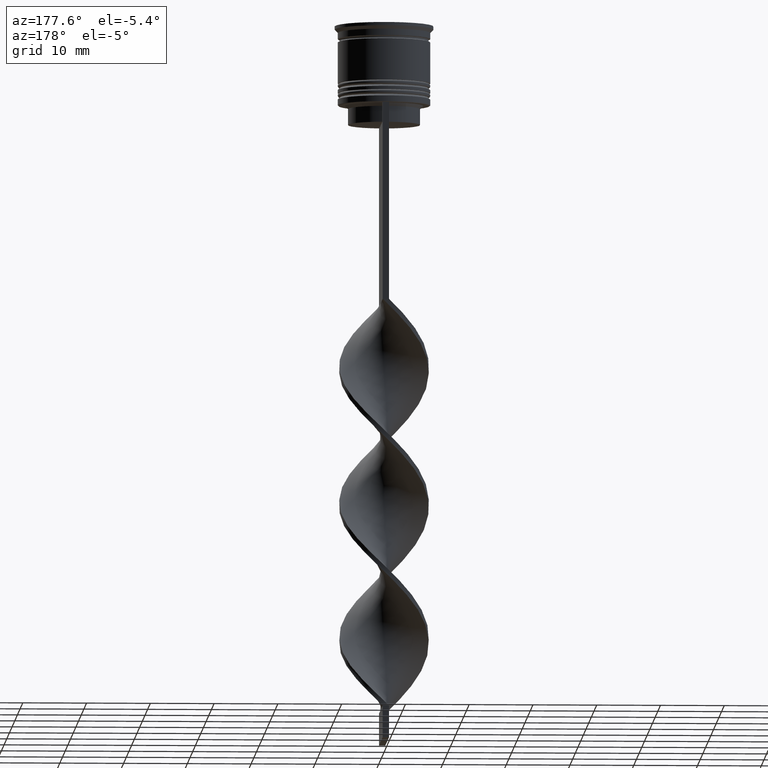
[diagram: clean part render]
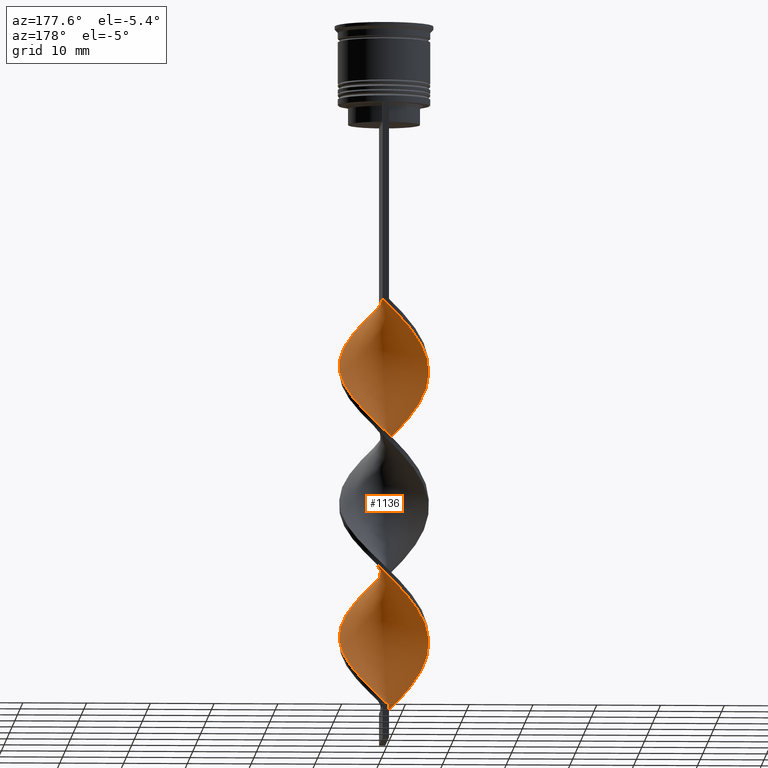
[diagram: same view with one face highlighted and labeled with its STEP entity id]
A machine part, auxiliary view. The second image highlights one B-rep face of the part: STEP entity #1136.
In plain terms, the highlighted face is a freeform B-spline surface patch.
Its self-contained STEP definition (entity closure, byte-faithful):
#39 = B_SPLINE_CURVE_WITH_KNOTS ( 'NONE', 3,
 ( #654, #2199, #832, #1928 ),
 .UNSPECIFIED., .F., .F.,
 ( 4, 4 ),
 ( 0.000000000000000000, 1.000000000000000000 ),
 .UNSPECIFIED. ) ;
#61 = VERTEX_POINT ( 'NONE', #193 ) ;
#62 = CARTESIAN_POINT ( 'NONE',  ( -6.722416142319174170, -2.014726087955041933, -99.29487179487178139 ) ) ;
#66 = CARTESIAN_POINT ( 'NONE',  ( -4.267603233600016921, 5.571136566318108052, -48.42307692307691269 ) ) ;
#69 = CARTESIAN_POINT ( 'NONE',  ( 6.888693778558713454, 1.340111198836287043, -97.65384615384614619 ) ) ;
#86 = CARTESIAN_POINT ( 'NONE',  ( 0.3499538825558265454, 7.060710991611127696, -106.6794871794871682 ) ) ;
#96 = CARTESIAN_POINT ( 'NONE',  ( -6.009647691495620947, 3.722934602041179986, -93.55128205128204399 ) ) ;
#98 = CARTESIAN_POINT ( 'NONE',  ( -6.044919434621174759, -3.564961294171263173, -58.26923076923076650 ) ) ;
#100 = CARTESIAN_POINT ( 'NONE',  ( 5.612054764172300203, -4.298947400341750047, -91.91025641025643722 ) ) ;
#102 =( BOUNDED_SURFACE ( )  B_SPLINE_SURFACE ( 1, 2, ( 
 ( #596, #649, #2778, #325, #116, #1412, #66, #3352, #911, #2243, #3316, #1967, #1739, #3058, #612, #2831, #2544, #377, #98, #1256, #1311, #2900, #1563, #736, #432, #1278, #2110, #1001, #190, #1525, #1579, #2615, #3154, #2935, #680, #2076, #152, #2656, #3169, #1795, #1295, #1834, #2349, #2675, #3203, #2886, #719, #1811, #1778, #2367, #454, #205, #169, #2381, #3446, #757, #491, #3427, #1851, #3462, #2596, #222, #1543, #415, #1021, #3183, #2093, #2400, #3484, #2921, #2639, #985, #473, #2038, #3132, #2870, #1508, #1236, #2325 ),
 ( #3404, #963, #2058, #704, #245, #1328, #2420, #2695, #1867, #2950, #509, #1599, #1042, #2131, #3218, #773, #1742, #2833, #379, #3099, #1494, #914, #2297, #651, #3356, #1468, #1724, #2546, #2276, #2008, #2817, #2584, #1987, #665, #141, #3373, #888, #2562, #365, #1222, #3080, #1759, #2314, #930, #636, #2781, #1148, #2026, #614, #1181, #858, #121, #1453, #1202, #3332, #3116, #2850, #1954, #400, #100, #3047, #598, #1685, #327, #1415, #2513, #69, #2244, #3318, #871, #351, #1969, #3061, #1701, #2799, #1435, #2529, #86, #1163 ) ),
 .UNSPECIFIED., .F., .F., .F. ) 
 B_SPLINE_SURFACE_WITH_KNOTS ( ( 2, 2 ),
 ( 3, 2, 2, 2, 2, 2, 2, 2, 2, 2, 2, 2, 2, 2, 2, 2, 2, 2, 2, 2, 2, 2, 2, 2, 2, 2, 2, 2, 2, 2, 2, 2, 2, 2, 2, 2, 2, 2, 2, 3 ),
 ( 0.000000000000000000, 1.000000000000000000 ),
 ( 0.000000000000000000, 0.01923076923076923184, 0.03846153846153846367, 0.05769230769230769551, 0.07692307692307692735, 0.09615384615384615918, 0.1153846153846153910, 0.1346153846153846090, 0.1538461538461538547, 0.1730769230769230727, 0.1923076923076923184, 0.2115384615384615363, 0.2307692307692307820, 0.2500000000000000000, 0.2692307692307692180, 0.2884615384615384359, 0.3076923076923077094, 0.3269230769230769273, 0.3461538461538461453, 0.3653846153846153633, 0.3846153846153846367, 0.4038461538461538547, 0.4230769230769230727, 0.4423076923076922906, 0.4615384615384615641, 0.4807692307692307820, 0.5000000000000000000, 0.5192307692307692735, 0.5384615384615384359, 0.5576923076923077094, 0.5769230769230768718, 0.5961538461538461453, 0.6153846153846154188, 0.6346153846153845812, 0.6538461538461538547, 0.6730769230769231282, 0.6923076923076922906, 0.7115384615384615641, 0.7307692307692307265, 0.7500000000000000000 ),
 .UNSPECIFIED. ) 
 GEOMETRIC_REPRESENTATION_ITEM ( )  RATIONAL_B_SPLINE_SURFACE ( (
 ( 1.000000000000000000, 0.9927088740980539727, 1.000000000000000000, 0.9927088740980539727, 1.000000000000000000, 0.9927088740980539727, 1.000000000000000000, 0.9927088740980539727, 1.000000000000000000, 0.9927088740980539727, 1.000000000000000000, 0.9927088740980539727, 1.000000000000000000, 0.9927088740980539727, 1.000000000000000000, 0.9927088740980539727, 1.000000000000000000, 0.9927088740980539727, 1.000000000000000000, 0.9927088740980539727, 1.000000000000000000, 0.9927088740980539727, 1.000000000000000000, 0.9927088740980539727, 1.000000000000000000, 0.9927088740980539727, 1.000000000000000000, 0.9927088740980539727, 1.000000000000000000, 0.9927088740980539727, 1.000000000000000000, 0.9927088740980539727, 1.000000000000000000, 0.9927088740980539727, 1.000000000000000000, 0.9927088740980539727, 1.000000000000000000, 0.9927088740980539727, 1.000000000000000000, 0.9927088740980539727, 1.000000000000000000, 0.9927088740980539727, 1.000000000000000000, 0.9927088740980539727, 1.000000000000000000, 0.9927088740980539727, 1.000000000000000000, 0.9927088740980539727, 1.000000000000000000, 0.9927088740980539727, 1.000000000000000000, 0.9927088740980539727, 1.000000000000000000, 0.9927088740980539727, 1.000000000000000000, 0.9927088740980539727, 1.000000000000000000, 0.9927088740980539727, 1.000000000000000000, 0.9927088740980539727, 1.000000000000000000, 0.9927088740980539727, 1.000000000000000000, 0.9927088740980539727, 1.000000000000000000, 0.9927088740980539727, 1.000000000000000000, 0.9927088740980539727, 1.000000000000000000, 0.9927088740980539727, 1.000000000000000000, 0.9927088740980539727, 1.000000000000000000, 0.9927088740980539727, 1.000000000000000000, 0.9927088740980539727, 1.000000000000000000, 0.9927088740980539727, 1.000000000000000000),
 ( 1.000000000000000000, 0.9927088740980539727, 1.000000000000000000, 0.9927088740980539727, 1.000000000000000000, 0.9927088740980539727, 1.000000000000000000, 0.9927088740980539727, 1.000000000000000000, 0.9927088740980539727, 1.000000000000000000, 0.9927088740980539727, 1.000000000000000000, 0.9927088740980539727, 1.000000000000000000, 0.9927088740980539727, 1.000000000000000000, 0.9927088740980539727, 1.000000000000000000, 0.9927088740980539727, 1.000000000000000000, 0.9927088740980539727, 1.000000000000000000, 0.9927088740980539727, 1.000000000000000000, 0.9927088740980539727, 1.000000000000000000, 0.9927088740980539727, 1.000000000000000000, 0.9927088740980539727, 1.000000000000000000, 0.9927088740980539727, 1.000000000000000000, 0.9927088740980539727, 1.000000000000000000, 0.9927088740980539727, 1.000000000000000000, 0.9927088740980539727, 1.000000000000000000, 0.9927088740980539727, 1.000000000000000000, 0.9927088740980539727, 1.000000000000000000, 0.9927088740980539727, 1.000000000000000000, 0.9927088740980539727, 1.000000000000000000, 0.9927088740980539727, 1.000000000000000000, 0.9927088740980539727, 1.000000000000000000, 0.9927088740980539727, 1.000000000000000000, 0.9927088740980539727, 1.000000000000000000, 0.9927088740980539727, 1.000000000000000000, 0.9927088740980539727, 1.000000000000000000, 0.9927088740980539727, 1.000000000000000000, 0.9927088740980539727, 1.000000000000000000, 0.9927088740980539727, 1.000000000000000000, 0.9927088740980539727, 1.000000000000000000, 0.9927088740980539727, 1.000000000000000000, 0.9927088740980539727, 1.000000000000000000, 0.9927088740980539727, 1.000000000000000000, 0.9927088740980539727, 1.000000000000000000, 0.9927088740980539727, 1.000000000000000000, 0.9927088740980539727, 1.000000000000000000) ) ) 
 REPRESENTATION_ITEM ( '' )  SURFACE ( )  );
#116 = CARTESIAN_POINT ( 'NONE',  ( -2.810334191479775701, 6.430553765594355653, -46.78205128205127750 ) ) ;
#121 = CARTESIAN_POINT ( 'NONE',  ( -0.3499538825558274335, -7.060710991611127696, -85.34615384615383959 ) ) ;
#127 =( BOUNDED_CURVE ( )  B_SPLINE_CURVE ( 2, ( #1486, #2106, #2324, #452, #984, #1254, #961, #391, #203, #3153, #189, #3182, #3402, #1794, #3201, #1293, #1507, #2843, #2057, #2579, #1524, #3425, #137, #2899, #431, #1775, #2595, #703, #3444, #2885, #2637, #2308, #2614, #3168, #2075, #151, #3461, #1000, #167, #1562, #1275, #2091, #1755, #1235, #2920, #1019, #718, #734, #1216, #2655, #1832, #1809, #1541, #472, #3385, #940, #3130, #678, #2869, #1346, #2934, #2674, #1041, #3266, #506, #1070, #2200, #2988, #2436, #542, #3231, #1916, #1578, #3499, #2712, #3516, #1383, #3002, #756 ),
 .UNSPECIFIED., .F., .T. ) 
 B_SPLINE_CURVE_WITH_KNOTS ( ( 3, 2, 2, 2, 2, 2, 2, 2, 2, 2, 2, 2, 2, 2, 2, 2, 2, 2, 2, 2, 2, 2, 2, 2, 2, 2, 2, 2, 2, 2, 2, 2, 2, 2, 2, 2, 2, 2, 2, 3 ),
 ( 0.000000000000000000, 0.01923076923076923184, 0.03846153846153846367, 0.05769230769230768857, 0.07692307692307692735, 0.09615384615384615918, 0.1153846153846153771, 0.1346153846153846090, 0.1538461538461538547, 0.1730769230769230449, 0.1923076923076923184, 0.2115384615384615363, 0.2307692307692307543, 0.2500000000000000000, 0.2692307692307692180, 0.2884615384615384359, 0.3076923076923077094, 0.3269230769230769273, 0.3461538461538460898, 0.3653846153846153633, 0.3846153846153846367, 0.4038461538461539102, 0.4230769230769230727, 0.4423076923076922906, 0.4615384615384615086, 0.4807692307692307820, 0.5000000000000000000, 0.5192307692307692735, 0.5384615384615384359, 0.5576923076923077094, 0.5769230769230768718, 0.5961538461538461453, 0.6153846153846154188, 0.6346153846153845812, 0.6538461538461538547, 0.6730769230769230171, 0.6923076923076921796, 0.7115384615384615641, 0.7307692307692307265, 0.7500000000000000000 ),
 .UNSPECIFIED. ) 
 CURVE ( )  GEOMETRIC_REPRESENTATION_ITEM ( )  RATIONAL_B_SPLINE_CURVE ( ( 1.000000000000000000, 0.9927088740980539727, 1.000000000000000000, 0.9927088740980539727, 1.000000000000000000, 0.9927088740980539727, 1.000000000000000000, 0.9927088740980539727, 1.000000000000000000, 0.9927088740980539727, 1.000000000000000000, 0.9927088740980539727, 1.000000000000000000, 0.9927088740980539727, 1.000000000000000000, 0.9927088740980539727, 1.000000000000000000, 0.9927088740980539727, 1.000000000000000000, 0.9927088740980539727, 1.000000000000000000, 0.9927088740980539727, 1.000000000000000000, 0.9927088740980539727, 1.000000000000000000, 0.9927088740980539727, 1.000000000000000000, 0.9927088740980539727, 1.000000000000000000, 0.9927088740980539727, 1.000000000000000000, 0.9927088740980539727, 1.000000000000000000, 0.9927088740980539727, 1.000000000000000000, 0.9927088740980539727, 1.000000000000000000, 0.9927088740980539727, 1.000000000000000000, 0.9927088740980539727, 1.000000000000000000, 0.9927088740980539727, 1.000000000000000000, 0.9927088740980539727, 1.000000000000000000, 0.9927088740980539727, 1.000000000000000000, 0.9927088740980539727, 1.000000000000000000, 0.9927088740980539727, 1.000000000000000000, 0.9927088740980539727, 1.000000000000000000, 0.9927088740980539727, 1.000000000000000000, 0.9927088740980539727, 1.000000000000000000, 0.9927088740980539727, 1.000000000000000000, 0.9927088740980539727, 1.000000000000000000, 0.9927088740980539727, 1.000000000000000000, 0.9927088740980539727, 1.000000000000000000, 0.9927088740980539727, 1.000000000000000000, 0.9927088740980539727, 1.000000000000000000, 0.9927088740980539727, 1.000000000000000000, 0.9927088740980539727, 1.000000000000000000, 0.9927088740980539727, 1.000000000000000000, 0.9927088740980539727, 1.000000000000000000, 0.9927088740980539727, 1.000000000000000000 ) ) 
 REPRESENTATION_ITEM ( '' )  );
#137 = CARTESIAN_POINT ( 'NONE',  ( 2.810334191479774812, 6.430553765594350324, -61.55128205128204399 ) ) ;
#141 = CARTESIAN_POINT ( 'NONE',  ( -6.044919434621171206, 3.564961294171262285, -71.39743589743588359 ) ) ;
#147 = CARTESIAN_POINT ( 'NONE',  ( -4.267603233600016921, 5.571136566318108052, -48.42307692307691269 ) ) ;
#151 = CARTESIAN_POINT ( 'NONE',  ( -6.477784105070039544, 2.830975188000776743, -72.21794871794871540 ) ) ;
#152 = CARTESIAN_POINT ( 'NONE',  ( 6.367811255276637716, -2.949742330640459542, -73.03846153846153300 ) ) ;
#163 = CARTESIAN_POINT ( 'NONE',  ( -0.3499538825558239363, 7.060710991611133025, -44.32051282051282470 ) ) ;
#167 = CARTESIAN_POINT ( 'NONE',  ( -7.009230458814037057, 0.3474023247382377333, -74.67948717948718240 ) ) ;
#169 = CARTESIAN_POINT ( 'NONE',  ( 0.5000000000000000000, 7.000000000000002665, -86.16666666666667140 ) ) ;
#183 = CARTESIAN_POINT ( 'NONE',  ( -6.477784105070046650, -2.830975188000774523, -57.44871794871794890 ) ) ;
#189 = CARTESIAN_POINT ( 'NONE',  ( 6.722416142319168841, -2.014726087955042377, -51.70512820512820440 ) ) ;
#190 = CARTESIAN_POINT ( 'NONE',  ( 1.189738741299876557, -6.916250554126146532, -66.47435897435896379 ) ) ;
#193 = CARTESIAN_POINT ( 'NONE',  ( -0.4999999999999991673, 6.999999999999997335, -107.5000000000000000 ) ) ;
#203 = CARTESIAN_POINT ( 'NONE',  ( 6.044919434621171206, -3.564961294171262285, -50.06410256410256210 ) ) ;
#205 = CARTESIAN_POINT ( 'NONE',  ( 1.349953882555827933, 6.939289008388872304, -85.34615384615383959 ) ) ;
#215 = ORIENTED_EDGE ( 'NONE', *, *, #2540, .T. ) ;
#222 = CARTESIAN_POINT ( 'NONE',  ( -6.009647691495620947, 3.722934602041179986, -93.55128205128204399 ) ) ;
#245 = CARTESIAN_POINT ( 'NONE',  ( 3.695790217132983280, -5.965830593550583316, -46.78205128205127750 ) ) ;
#322 = CARTESIAN_POINT ( 'NONE',  ( -5.612054764172305532, -4.298947400341750935, -101.7564102564102484 ) ) ;
#325 = CARTESIAN_POINT ( 'NONE',  ( -2.029523600043933396, 6.771790116641159152, -45.96153846153845279 ) ) ;
#327 = CARTESIAN_POINT ( 'NONE',  ( 6.967048179568297250, -1.198476987909310010, -95.19230769230769340 ) ) ;
#344 = CARTESIAN_POINT ( 'NONE',  ( -4.420173199369934913, -5.517080415812871230, -103.3974358974358836 ) ) ;
#351 = CARTESIAN_POINT ( 'NONE',  ( 5.476854687890015505, 4.387945160064917083, -100.9358974358974308 ) ) ;
#365 = CARTESIAN_POINT ( 'NONE',  ( -7.009230458814037057, 0.3474023247382377333, -74.67948717948718240 ) ) ;
#377 = CARTESIAN_POINT ( 'NONE',  ( -6.477784105070046650, -2.830975188000774079, -57.44871794871794890 ) ) ;
#379 = CARTESIAN_POINT ( 'NONE',  ( 5.476854687890015505, 4.387945160064917083, -58.26923076923076650 ) ) ;
#385 = CARTESIAN_POINT ( 'NONE',  ( 1.189738741299876557, -6.916250554126146532, -66.47435897435896379 ) ) ;
#391 = CARTESIAN_POINT ( 'NONE',  ( 5.612054764172300203, -4.298947400341750047, -49.24358974358974450 ) ) ;
#400 = CARTESIAN_POINT ( 'NONE',  ( 5.016113981771114005, -4.908013908077308862, -91.08974358974359120 ) ) ;
#415 = CARTESIAN_POINT ( 'NONE',  ( -6.725974819057656262, 2.176550059239737323, -95.19230769230769340 ) ) ;
#431 = CARTESIAN_POINT ( 'NONE',  ( 1.189738741299880109, 6.916250554126139427, -63.19230769230768630 ) ) ;
#432 = CARTESIAN_POINT ( 'NONE',  ( -2.160680558725933675, -6.676934889838586962, -63.19230769230768630 ) ) ;
#446 = CARTESIAN_POINT ( 'NONE',  ( -7.009230458814042386, -0.3474023247382335144, -54.98717948717948190 ) ) ;
#452 = CARTESIAN_POINT ( 'NONE',  ( 2.971407234896035643, -6.414580771288298955, -45.96153846153845990 ) ) ;
#454 = CARTESIAN_POINT ( 'NONE',  ( 2.160680558725937228, 6.676934889838585185, -84.52564102564103621 ) ) ;
#467 = CARTESIAN_POINT ( 'NONE',  ( -4.420173199369934913, -5.517080415812871230, -60.73076923076922640 ) ) ;
#472 = CARTESIAN_POINT ( 'NONE',  ( 1.349953882555823492, -6.939289008388866975, -86.98717948717948900 ) ) ;
#473 = CARTESIAN_POINT ( 'NONE',  ( -5.016113981771120223, -4.908013908077310639, -102.5769230769230660 ) ) ;
#486 = CARTESIAN_POINT ( 'NONE',  ( 5.612054764172307308, 4.298947400341747382, -80.42307692307691980 ) ) ;
#491 = CARTESIAN_POINT ( 'NONE',  ( -2.810334191479775701, 6.430553765594355653, -89.44871794871794179 ) ) ;
#506 = CARTESIAN_POINT ( 'NONE',  ( 7.009230458814037057, -0.3474023247382352353, -96.01282051282051100 ) ) ;
#509 = CARTESIAN_POINT ( 'NONE',  ( 6.722416142319168841, -2.014726087955042377, -51.70512820512820440 ) ) ;
#542 = CARTESIAN_POINT ( 'NONE',  ( 6.009647691495615618, 3.722934602041176877, -100.1153846153846132 ) ) ;
#593 = CARTESIAN_POINT ( 'NONE',  ( -0.3499538825558239363, 7.060710991611133025, -86.98717948717948900 ) ) ;
#596 = CARTESIAN_POINT ( 'NONE',  ( 0.5000000000000000000, 7.000000000000002665, -43.50000000000000000 ) ) ;
#598 = CARTESIAN_POINT ( 'NONE',  ( 6.477784105070041321, -2.830975188000772746, -93.55128205128204399 ) ) ;
#612 = CARTESIAN_POINT ( 'NONE',  ( -7.009230458814042386, -0.3474023247382335144, -54.98717948717948190 ) ) ;
#614 = CARTESIAN_POINT ( 'NONE',  ( -2.810334191479778365, -6.430553765594348548, -82.88461538461537259 ) ) ;
#636 = CARTESIAN_POINT ( 'NONE',  ( -5.476854687890015505, -4.387945160064916195, -79.60256410256410220 ) ) ;
#647 = CARTESIAN_POINT ( 'NONE',  ( -1.349953882555827045, -6.939289008388872304, -106.6794871794871824 ) ) ;
#649 = CARTESIAN_POINT ( 'NONE',  ( -0.3499538825558239363, 7.060710991611133025, -44.32051282051282470 ) ) ;
#651 = CARTESIAN_POINT ( 'NONE',  ( 2.029523600043933840, 6.771790116641152935, -62.37179487179486870 ) ) ;
#654 = CARTESIAN_POINT ( 'NONE',  ( -0.5000000000000008882, -7.000000000000002665, -107.5000000000000000 ) ) ;
#665 = CARTESIAN_POINT ( 'NONE',  ( -5.612054764172298427, 4.298947400341751823, -70.57692307692306599 ) ) ;
#678 = CARTESIAN_POINT ( 'NONE',  ( 4.420173199369930472, -5.517080415812867678, -90.26923076923077360 ) ) ;
#680 = CARTESIAN_POINT ( 'NONE',  ( 5.476854687890019058, -4.387945160064921524, -71.39743589743588359 ) ) ;
#696 = CARTESIAN_POINT ( 'NONE',  ( -4.944061684284418057, 5.052955718088663062, -49.24358974358974450 ) ) ;
#703 = CARTESIAN_POINT ( 'NONE',  ( -1.349953882555821938, 6.939289008388866975, -65.65384615384614619 ) ) ;
#704 = CARTESIAN_POINT ( 'NONE',  ( 2.971407234896035199, -6.414580771288298955, -45.96153846153845279 ) ) ;
#707 = ORIENTED_EDGE ( 'NONE', *, *, #1647, .F. ) ;
#714 = CARTESIAN_POINT ( 'NONE',  ( 0.5000000000000000000, 7.000000000000002665, -43.50000000000000000 ) ) ;
#718 = CARTESIAN_POINT ( 'NONE',  ( -4.267603233600016921, -5.571136566318100947, -81.24358974358973740 ) ) ;
#719 = CARTESIAN_POINT ( 'NONE',  ( 5.016113981771121111, 4.908013908077309750, -81.24358974358973740 ) ) ;
#729 = CARTESIAN_POINT ( 'NONE',  ( -5.612054764172305532, -4.298947400341750935, -59.08974358974358410 ) ) ;
#734 = CARTESIAN_POINT ( 'NONE',  ( -3.591144782915616673, -6.089317414547548601, -82.06410256410255499 ) ) ;
#736 = CARTESIAN_POINT ( 'NONE',  ( -2.971407234896040084, -6.414580771288303396, -62.37179487179486870 ) ) ;
#749 = CARTESIAN_POINT ( 'NONE',  ( 6.967048179568302579, 1.198476987909308011, -77.14102564102563520 ) ) ;
#756 = CARTESIAN_POINT ( 'NONE',  ( -0.4999999999999991673, 6.999999999999997335, -107.5000000000000000 ) ) ;
#757 = CARTESIAN_POINT ( 'NONE',  ( -2.029523600043933396, 6.771790116641159152, -88.62820512820513841 ) ) ;
#773 = CARTESIAN_POINT ( 'NONE',  ( 6.725974819057651821, 2.176550059239734658, -55.80769230769230660 ) ) ;
#832 = CARTESIAN_POINT ( 'NONE',  ( -0.4999999999999996669, 2.333333333333331261, -107.5000000000000000 ) ) ;
#852 = CARTESIAN_POINT ( 'NONE',  ( 2.160680558725937228, 6.676934889838585185, -84.52564102564103621 ) ) ;
#858 = CARTESIAN_POINT ( 'NONE',  ( -1.189738741299884106, -6.916250554126139427, -84.52564102564103621 ) ) ;
#871 = CARTESIAN_POINT ( 'NONE',  ( 6.009647691495616506, 3.722934602041176433, -100.1153846153846274 ) ) ;
#883 = CARTESIAN_POINT ( 'NONE',  ( -4.944061684284418057, 5.052955718088663062, -91.91025641025643722 ) ) ;
#888 = CARTESIAN_POINT ( 'NONE',  ( -6.722416142319168841, 2.014726087955043266, -73.03846153846153300 ) ) ;
#899 = VERTEX_POINT ( 'NONE', #1911 ) ;
#907 = CARTESIAN_POINT ( 'NONE',  ( 4.420173199369935801, 5.517080415812871230, -82.06410256410255499 ) ) ;
#910 = VECTOR ( 'NONE', #2948, 1000.000000000000000 ) ;
#911 = CARTESIAN_POINT ( 'NONE',  ( -5.476854687890019058, 4.387945160064921524, -50.06410256410256210 ) ) ;
#914 = CARTESIAN_POINT ( 'NONE',  ( 3.591144782915615785, 6.089317414547548601, -60.73076923076922640 ) ) ;
#921 = CARTESIAN_POINT ( 'NONE',  ( -0.5000000000000008882, -7.000000000000002665, -64.83333333333332860 ) ) ;
#930 = CARTESIAN_POINT ( 'NONE',  ( -6.009647691495618282, -3.722934602041173324, -78.78205128205127039 ) ) ;
#940 = CARTESIAN_POINT ( 'NONE',  ( 2.971407234896035643, -6.414580771288298955, -88.62820512820512420 ) ) ;
#941 = FACE_OUTER_BOUND ( 'NONE', #1763, .T. ) ;
#961 = CARTESIAN_POINT ( 'NONE',  ( 5.016113981771114005, -4.908013908077308862, -48.42307692307691269 ) ) ;
#963 = CARTESIAN_POINT ( 'NONE',  ( 1.349953882555823492, -6.939289008388866975, -44.32051282051282470 ) ) ;
#984 = CARTESIAN_POINT ( 'NONE',  ( 3.695790217132983280, -5.965830593550583316, -46.78205128205127750 ) ) ;
#985 = CARTESIAN_POINT ( 'NONE',  ( -5.612054764172305532, -4.298947400341750935, -101.7564102564102484 ) ) ;
#996 = CARTESIAN_POINT ( 'NONE',  ( -6.367811255276637716, 2.949742330640459098, -51.70512820512820440 ) ) ;
#1000 = CARTESIAN_POINT ( 'NONE',  ( -6.967048179568297250, 1.198476987909309344, -73.85897435897436480 ) ) ;
#1001 = CARTESIAN_POINT ( 'NONE',  ( 0.3499538825558224375, -7.060710991611133025, -65.65384615384614619 ) ) ;
#1012 = CARTESIAN_POINT ( 'NONE',  ( 6.722416142319175059, 2.014726087955042821, -77.96153846153845279 ) ) ;
#1019 = CARTESIAN_POINT ( 'NONE',  ( -4.944061684284418057, -5.052955718088653292, -80.42307692307691980 ) ) ;
#1021 = CARTESIAN_POINT ( 'NONE',  ( -6.888693778558718783, 1.340111198836290152, -96.01282051282051100 ) ) ;
#1041 = CARTESIAN_POINT ( 'NONE',  ( 6.722416142319168841, -2.014726087955042377, -94.37179487179486159 ) ) ;
#1042 = CARTESIAN_POINT ( 'NONE',  ( 7.009230458814037057, -0.3474023247382352353, -53.34615384615383959 ) ) ;
#1070 = CARTESIAN_POINT ( 'NONE',  ( 7.051412738059777752, 0.5036723384328409825, -96.83333333333332860 ) ) ;
#1110 = CARTESIAN_POINT ( 'NONE',  ( -2.029523600043933396, 6.771790116641159152, -88.62820512820512420 ) ) ;
#1136 = ADVANCED_FACE ( 'NONE', ( #941 ), #102, .T. ) ;
#1148 = CARTESIAN_POINT ( 'NONE',  ( -4.267603233600016921, -5.571136566318100947, -81.24358974358973740 ) ) ;
#1163 = CARTESIAN_POINT ( 'NONE',  ( -0.4999999999999991673, 6.999999999999997335, -107.5000000000000000 ) ) ;
#1174 = CARTESIAN_POINT ( 'NONE',  ( -1.189738741299878777, 6.916250554126145644, -87.80769230769230660 ) ) ;
#1181 = CARTESIAN_POINT ( 'NONE',  ( -2.029523600043934728, -6.771790116641152935, -83.70512820512820440 ) ) ;
#1202 = CARTESIAN_POINT ( 'NONE',  ( 1.349953882555823492, -6.939289008388866975, -86.98717948717948900 ) ) ;
#1210 = CARTESIAN_POINT ( 'NONE',  ( -3.695790217132986832, -5.965830593550586869, -61.55128205128204399 ) ) ;
#1216 = CARTESIAN_POINT ( 'NONE',  ( -2.810334191479778365, -6.430553765594348548, -82.88461538461537259 ) ) ;
#1222 = CARTESIAN_POINT ( 'NONE',  ( -7.051412738059776864, -0.5036723384328400943, -75.49999999999998579 ) ) ;
#1235 = CARTESIAN_POINT ( 'NONE',  ( -6.009647691495618282, -3.722934602041173324, -78.78205128205127039 ) ) ;
#1236 = CARTESIAN_POINT ( 'NONE',  ( -1.349953882555827045, -6.939289008388872304, -106.6794871794871682 ) ) ;
#1249 = CARTESIAN_POINT ( 'NONE',  ( -5.476854687890019058, 4.387945160064921524, -50.06410256410256210 ) ) ;
#1254 = CARTESIAN_POINT ( 'NONE',  ( 4.420173199369930472, -5.517080415812867678, -47.60256410256409509 ) ) ;
#1256 = CARTESIAN_POINT ( 'NONE',  ( -5.612054764172305532, -4.298947400341750935, -59.08974358974359120 ) ) ;
#1270 = CARTESIAN_POINT ( 'NONE',  ( -6.009647691495620947, 3.722934602041179986, -50.88461538461537970 ) ) ;
#1275 = CARTESIAN_POINT ( 'NONE',  ( -6.888693778558715231, -1.340111198836283046, -76.32051282051281760 ) ) ;
#1278 = CARTESIAN_POINT ( 'NONE',  ( -1.349953882555827045, -6.939289008388872304, -64.01282051282051100 ) ) ;
#1289 = CARTESIAN_POINT ( 'NONE',  ( 6.725974819057657150, -2.176550059239735546, -73.85897435897436480 ) ) ;
#1293 = CARTESIAN_POINT ( 'NONE',  ( 6.725974819057651821, 2.176550059239734214, -55.80769230769230660 ) ) ;
#1295 = CARTESIAN_POINT ( 'NONE',  ( 7.009230458814042386, 0.3474023247382295732, -76.32051282051281760 ) ) ;
#1311 = CARTESIAN_POINT ( 'NONE',  ( -5.016113981771120223, -4.908013908077310639, -59.91025641025640880 ) ) ;
#1328 = CARTESIAN_POINT ( 'NONE',  ( 4.420173199369930472, -5.517080415812866789, -47.60256410256408799 ) ) ;
#1346 = CARTESIAN_POINT ( 'NONE',  ( 5.612054764172300203, -4.298947400341750047, -91.91025641025643722 ) ) ;
#1383 = CARTESIAN_POINT ( 'NONE',  ( 1.189738741299880109, 6.916250554126139427, -105.8589743589743506 ) ) ;
#1412 = CARTESIAN_POINT ( 'NONE',  ( -3.591144782915618006, 6.089317414547553042, -47.60256410256408799 ) ) ;
#1415 = CARTESIAN_POINT ( 'NONE',  ( 7.009230458814037057, -0.3474023247382352353, -96.01282051282051100 ) ) ;
#1429 = CARTESIAN_POINT ( 'NONE',  ( 1.349953882555827933, 6.939289008388872304, -85.34615384615385381 ) ) ;
#1435 = CARTESIAN_POINT ( 'NONE',  ( 2.029523600043933840, 6.771790116641152935, -105.0384615384615330 ) ) ;
#1453 = CARTESIAN_POINT ( 'NONE',  ( 0.5000000000000000000, -6.999999999999997335, -86.16666666666667140 ) ) ;
#1468 = CARTESIAN_POINT ( 'NONE',  ( 0.3499538825558265454, 7.060710991611127696, -64.01282051282051100 ) ) ;
#1478 = CARTESIAN_POINT ( 'NONE',  ( 2.029523600043930731, -6.771790116641160040, -67.29487179487178139 ) ) ;
#1486 = CARTESIAN_POINT ( 'NONE',  ( 0.5000000000000000000, -6.999999999999997335, -43.50000000000000000 ) ) ;
#1494 = CARTESIAN_POINT ( 'NONE',  ( 4.267603233600016033, 5.571136566318101835, -59.91025641025640880 ) ) ;
#1507 = CARTESIAN_POINT ( 'NONE',  ( 6.367811255276634164, 2.949742330640454657, -56.62820512820513130 ) ) ;
#1508 = CARTESIAN_POINT ( 'NONE',  ( -2.160680558725933675, -6.676934889838586962, -105.8589743589743506 ) ) ;
#1524 = CARTESIAN_POINT ( 'NONE',  ( 4.267603233600016033, 5.571136566318101835, -59.91025641025640880 ) ) ;
#1525 = CARTESIAN_POINT ( 'NONE',  ( 2.029523600043930731, -6.771790116641160040, -67.29487179487178139 ) ) ;
#1534 = CARTESIAN_POINT ( 'NONE',  ( -6.967048179568301691, -1.198476987909310676, -55.80769230769230660 ) ) ;
#1541 = CARTESIAN_POINT ( 'NONE',  ( 0.5000000000000000000, -6.999999999999997335, -86.16666666666667140 ) ) ;
#1543 = CARTESIAN_POINT ( 'NONE',  ( -6.367811255276637716, 2.949742330640459098, -94.37179487179486159 ) ) ;
#1562 = CARTESIAN_POINT ( 'NONE',  ( -7.051412738059777752, -0.5036723384328402053, -75.50000000000000000 ) ) ;
#1563 = CARTESIAN_POINT ( 'NONE',  ( -3.695790217132986832, -5.965830593550586869, -61.55128205128204399 ) ) ;
#1574 = CARTESIAN_POINT ( 'NONE',  ( 7.051412738059782193, -0.5036723384328427588, -75.50000000000000000 ) ) ;
#1578 = CARTESIAN_POINT ( 'NONE',  ( 4.267603233600016033, 5.571136566318101835, -102.5769230769230660 ) ) ;
#1579 = CARTESIAN_POINT ( 'NONE',  ( 2.810334191479775257, -6.430553765594355653, -68.11538461538459899 ) ) ;
#1599 = CARTESIAN_POINT ( 'NONE',  ( 6.967048179568297250, -1.198476987909310010, -52.52564102564103621 ) ) ;
#1647 = EDGE_CURVE ( 'NONE', #3084, #61, #39, .T. ) ;
#1682 = CARTESIAN_POINT ( 'NONE',  ( 2.971407234896040528, 6.414580771288303396, -83.70512820512820440 ) ) ;
#1685 = CARTESIAN_POINT ( 'NONE',  ( 6.722416142319168841, -2.014726087955042377, -94.37179487179486159 ) ) ;
#1695 = CARTESIAN_POINT ( 'NONE',  ( -3.591144782915618006, 6.089317414547553931, -90.26923076923077360 ) ) ;
#1701 = CARTESIAN_POINT ( 'NONE',  ( 3.591144782915615785, 6.089317414547548601, -103.3974358974358694 ) ) ;
#1724 = CARTESIAN_POINT ( 'NONE',  ( -0.4999999999999991673, 6.999999999999997335, -64.83333333333332860 ) ) ;
#1737 = CARTESIAN_POINT ( 'NONE',  ( -3.695790217132986832, -5.965830593550586869, -104.2179487179487012 ) ) ;
#1739 = CARTESIAN_POINT ( 'NONE',  ( -6.888693778558718783, 1.340111198836290152, -53.34615384615383959 ) ) ;
#1742 = CARTESIAN_POINT ( 'NONE',  ( 6.367811255276634164, 2.949742330640454657, -56.62820512820513130 ) ) ;
#1755 = CARTESIAN_POINT ( 'NONE',  ( -6.367811255276633275, -2.949742330640455545, -77.96153846153845279 ) ) ;
#1759 = CARTESIAN_POINT ( 'NONE',  ( -6.725974819057652709, -2.176550059239732438, -77.14102564102563520 ) ) ;
#1763 = EDGE_LOOP ( 'NONE', ( #3004, #215, #707, #2599 ) ) ;
#1775 = CARTESIAN_POINT ( 'NONE',  ( 0.3499538825558265454, 7.060710991611127696, -64.01282051282051100 ) ) ;
#1778 = CARTESIAN_POINT ( 'NONE',  ( 3.695790217132989941, 5.965830593550585093, -82.88461538461537259 ) ) ;
#1794 = CARTESIAN_POINT ( 'NONE',  ( 7.051412738059777752, 0.5036723384328409825, -54.16666666666666430 ) ) ;
#1795 = CARTESIAN_POINT ( 'NONE',  ( 7.051412738059782193, -0.5036723384328427588, -75.49999999999998579 ) ) ;
#1804 = CARTESIAN_POINT ( 'NONE',  ( -1.189738741299878777, 6.916250554126145644, -45.14102564102563520 ) ) ;
#1809 = CARTESIAN_POINT ( 'NONE',  ( -0.3499538825558274335, -7.060710991611127696, -85.34615384615385381 ) ) ;
#1811 = CARTESIAN_POINT ( 'NONE',  ( 4.420173199369935801, 5.517080415812870342, -82.06410256410255499 ) ) ;
#1827 = CARTESIAN_POINT ( 'NONE',  ( -2.971407234896039640, -6.414580771288303396, -62.37179487179486870 ) ) ;
#1832 = CARTESIAN_POINT ( 'NONE',  ( -1.189738741299884106, -6.916250554126139427, -84.52564102564103621 ) ) ;
#1834 = CARTESIAN_POINT ( 'NONE',  ( 6.967048179568302579, 1.198476987909308011, -77.14102564102563520 ) ) ;
#1846 = CARTESIAN_POINT ( 'NONE',  ( 6.044919434621175647, 3.564961294171262285, -79.60256410256410220 ) ) ;
#1850 = LINE ( 'NONE', #2163, #910 ) ;
#1851 = CARTESIAN_POINT ( 'NONE',  ( -4.267603233600016921, 5.571136566318108052, -91.08974358974359120 ) ) ;
#1867 = CARTESIAN_POINT ( 'NONE',  ( 6.044919434621171206, -3.564961294171262285, -50.06410256410256210 ) ) ;
#1911 = CARTESIAN_POINT ( 'NONE',  ( 0.5000000000000000000, 7.000000000000002665, -43.50000000000000000 ) ) ;
#1916 = CARTESIAN_POINT ( 'NONE',  ( 4.944061684284416280, 5.052955718088656845, -101.7564102564102484 ) ) ;
#1928 = CARTESIAN_POINT ( 'NONE',  ( -0.4999999999999991673, 6.999999999999997335, -107.5000000000000000 ) ) ;
#1933 = CARTESIAN_POINT ( 'NONE',  ( -6.044919434621174759, -3.564961294171263173, -100.9358974358974308 ) ) ;
#1950 = CARTESIAN_POINT ( 'NONE',  ( -6.367811255276637716, 2.949742330640459098, -94.37179487179486159 ) ) ;
#1954 = CARTESIAN_POINT ( 'NONE',  ( 4.420173199369930472, -5.517080415812866789, -90.26923076923075939 ) ) ;
#1967 = CARTESIAN_POINT ( 'NONE',  ( -6.725974819057656262, 2.176550059239737323, -52.52564102564103621 ) ) ;
#1969 = CARTESIAN_POINT ( 'NONE',  ( 4.944061684284416280, 5.052955718088656845, -101.7564102564102484 ) ) ;
#1981 = CARTESIAN_POINT ( 'NONE',  ( 3.695790217132989941, 5.965830593550585093, -82.88461538461537259 ) ) ;
#1987 = CARTESIAN_POINT ( 'NONE',  ( -5.016113981771113117, 4.908013908077309750, -69.75641025641024839 ) ) ;
#2008 = CARTESIAN_POINT ( 'NONE',  ( -2.971407234896032978, 6.414580771288299843, -67.29487179487178139 ) ) ;
#2015 = CARTESIAN_POINT ( 'NONE',  ( 0.3499538825558224375, -7.060710991611133025, -65.65384615384614619 ) ) ;
#2026 = CARTESIAN_POINT ( 'NONE',  ( -3.591144782915616673, -6.089317414547548601, -82.06410256410255499 ) ) ;
#2038 = CARTESIAN_POINT ( 'NONE',  ( -4.420173199369934913, -5.517080415812870342, -103.3974358974358694 ) ) ;
#2057 = CARTESIAN_POINT ( 'NONE',  ( 5.476854687890015505, 4.387945160064917083, -58.26923076923076650 ) ) ;
#2058 = CARTESIAN_POINT ( 'NONE',  ( 2.160680558725929679, -6.676934889838582521, -45.14102564102563520 ) ) ;
#2075 = CARTESIAN_POINT ( 'NONE',  ( -6.044919434621171206, 3.564961294171262285, -71.39743589743588359 ) ) ;
#2076 = CARTESIAN_POINT ( 'NONE',  ( 6.009647691495618282, -3.722934602041183094, -72.21794871794871540 ) ) ;
#2085 = CARTESIAN_POINT ( 'NONE',  ( -6.044919434621174759, -3.564961294171263173, -58.26923076923076650 ) ) ;
#2091 = CARTESIAN_POINT ( 'NONE',  ( -6.725974819057652709, -2.176550059239732438, -77.14102564102563520 ) ) ;
#2093 = CARTESIAN_POINT ( 'NONE',  ( -7.009230458814042386, -0.3474023247382335144, -97.65384615384614619 ) ) ;
#2101 = CARTESIAN_POINT ( 'NONE',  ( 5.476854687890019058, -4.387945160064921524, -71.39743589743588359 ) ) ;
#2106 = CARTESIAN_POINT ( 'NONE',  ( 1.349953882555823492, -6.939289008388866975, -44.32051282051282470 ) ) ;
#2110 = CARTESIAN_POINT ( 'NONE',  ( -0.5000000000000008882, -7.000000000000002665, -64.83333333333332860 ) ) ;
#2131 = CARTESIAN_POINT ( 'NONE',  ( 7.051412738059776864, 0.5036723384328409825, -54.16666666666665719 ) ) ;
#2163 = CARTESIAN_POINT ( 'NONE',  ( 0.5000000000000000000, -6.999999999999997335, -43.50000000000000000 ) ) ;
#2199 = CARTESIAN_POINT ( 'NONE',  ( -0.5000000000000003331, -2.333333333333336590, -107.5000000000000000 ) ) ;
#2200 = CARTESIAN_POINT ( 'NONE',  ( 6.888693778558713454, 1.340111198836287043, -97.65384615384614619 ) ) ;
#2205 = CARTESIAN_POINT ( 'NONE',  ( -2.160680558725933675, -6.676934889838586962, -105.8589743589743506 ) ) ;
#2240 = CARTESIAN_POINT ( 'NONE',  ( 0.5000000000000000000, 7.000000000000002665, -86.16666666666667140 ) ) ;
#2243 = CARTESIAN_POINT ( 'NONE',  ( -6.009647691495620947, 3.722934602041179986, -50.88461538461538680 ) ) ;
#2244 = CARTESIAN_POINT ( 'NONE',  ( 6.725974819057651821, 2.176550059239734658, -98.47435897435896379 ) ) ;
#2270 = CARTESIAN_POINT ( 'NONE',  ( -6.477784105070046650, -2.830975188000774523, -100.1153846153846132 ) ) ;
#2276 = CARTESIAN_POINT ( 'NONE',  ( -2.160680558725927458, 6.676934889838583409, -66.47435897435896379 ) ) ;
#2297 = CARTESIAN_POINT ( 'NONE',  ( 2.810334191479774812, 6.430553765594350324, -61.55128205128204399 ) ) ;
#2308 = CARTESIAN_POINT ( 'NONE',  ( -4.420173199369929584, 5.517080415812868566, -68.93589743589743080 ) ) ;
#2314 = CARTESIAN_POINT ( 'NONE',  ( -6.367811255276633275, -2.949742330640455545, -77.96153846153845279 ) ) ;
#2320 = CARTESIAN_POINT ( 'NONE',  ( -2.029523600043933396, 6.771790116641159152, -45.96153846153845990 ) ) ;
#2324 = CARTESIAN_POINT ( 'NONE',  ( 2.160680558725929679, -6.676934889838582521, -45.14102564102563520 ) ) ;
#2325 = CARTESIAN_POINT ( 'NONE',  ( -0.5000000000000008882, -7.000000000000002665, -107.5000000000000000 ) ) ;
#2349 = CARTESIAN_POINT ( 'NONE',  ( 6.722416142319175059, 2.014726087955042821, -77.96153846153845279 ) ) ;
#2367 = CARTESIAN_POINT ( 'NONE',  ( 2.971407234896040972, 6.414580771288303396, -83.70512820512820440 ) ) ;
#2368 = CARTESIAN_POINT ( 'NONE',  ( -0.5000000000000008882, -7.000000000000002665, -107.5000000000000000 ) ) ;
#2373 = CARTESIAN_POINT ( 'NONE',  ( 6.888693778558718783, -1.340111198836292372, -74.67948717948718240 ) ) ;
#2381 = CARTESIAN_POINT ( 'NONE',  ( -0.3499538825558239363, 7.060710991611133025, -86.98717948717948900 ) ) ;
#2400 = CARTESIAN_POINT ( 'NONE',  ( -6.967048179568301691, -1.198476987909310898, -98.47435897435896379 ) ) ;
#2420 = CARTESIAN_POINT ( 'NONE',  ( 5.016113981771114005, -4.908013908077308862, -48.42307692307691269 ) ) ;
#2436 = CARTESIAN_POINT ( 'NONE',  ( 6.367811255276634164, 2.949742330640454657, -99.29487179487178139 ) ) ;
#2513 = CARTESIAN_POINT ( 'NONE',  ( 7.051412738059776864, 0.5036723384328409825, -96.83333333333332860 ) ) ;
#2526 = CARTESIAN_POINT ( 'NONE',  ( -6.725974819057656262, 2.176550059239736878, -95.19230769230769340 ) ) ;
#2529 = CARTESIAN_POINT ( 'NONE',  ( 1.189738741299880109, 6.916250554126139427, -105.8589743589743506 ) ) ;
#2540 = EDGE_CURVE ( 'NONE', #3254, #61, #127, .T. ) ;
#2544 = CARTESIAN_POINT ( 'NONE',  ( -6.722416142319174170, -2.014726087955041933, -56.62820512820513130 ) ) ;
#2546 = CARTESIAN_POINT ( 'NONE',  ( -1.349953882555821938, 6.939289008388866975, -65.65384615384614619 ) ) ;
#2557 = CARTESIAN_POINT ( 'NONE',  ( -6.888693778558718783, 1.340111198836290152, -96.01282051282051100 ) ) ;
#2562 = CARTESIAN_POINT ( 'NONE',  ( -6.967048179568296362, 1.198476987909309566, -73.85897435897436480 ) ) ;
#2571 = CARTESIAN_POINT ( 'NONE',  ( 2.810334191479775257, -6.430553765594355653, -68.11538461538459899 ) ) ;
#2579 = CARTESIAN_POINT ( 'NONE',  ( 4.944061684284416280, 5.052955718088656845, -59.08974358974358410 ) ) ;
#2584 = CARTESIAN_POINT ( 'NONE',  ( -4.420173199369929584, 5.517080415812867678, -68.93589743589743080 ) ) ;
#2595 = CARTESIAN_POINT ( 'NONE',  ( -0.4999999999999991673, 6.999999999999997335, -64.83333333333332860 ) ) ;
#2596 = CARTESIAN_POINT ( 'NONE',  ( -5.476854687890019058, 4.387945160064921524, -92.73076923076922640 ) ) ;
#2598 = EDGE_CURVE ( 'NONE', #3254, #899, #1850, .T. ) ;
#2599 = ORIENTED_EDGE ( 'NONE', *, *, #2991, .F. ) ;
#2614 = CARTESIAN_POINT ( 'NONE',  ( -5.016113981771113117, 4.908013908077309750, -69.75641025641024839 ) ) ;
#2615 = CARTESIAN_POINT ( 'NONE',  ( 3.591144782915617117, -6.089317414547553931, -68.93589743589743080 ) ) ;
#2630 = CARTESIAN_POINT ( 'NONE',  ( -6.722416142319174170, -2.014726087955041933, -56.62820512820513130 ) ) ;
#2637 = CARTESIAN_POINT ( 'NONE',  ( -3.695790217132982836, 5.965830593550583316, -68.11538461538459899 ) ) ;
#2639 = CARTESIAN_POINT ( 'NONE',  ( -6.044919434621174759, -3.564961294171263173, -100.9358974358974308 ) ) ;
#2655 = CARTESIAN_POINT ( 'NONE',  ( -2.029523600043934728, -6.771790116641152935, -83.70512820512820440 ) ) ;
#2656 = CARTESIAN_POINT ( 'NONE',  ( 6.725974819057657150, -2.176550059239735990, -73.85897435897436480 ) ) ;
#2669 = CARTESIAN_POINT ( 'NONE',  ( 6.367811255276637716, -2.949742330640459542, -73.03846153846153300 ) ) ;
#2674 = CARTESIAN_POINT ( 'NONE',  ( 6.477784105070041321, -2.830975188000772746, -93.55128205128204399 ) ) ;
#2675 = CARTESIAN_POINT ( 'NONE',  ( 6.477784105070047538, 2.830975188000770970, -78.78205128205127039 ) ) ;
#2695 = CARTESIAN_POINT ( 'NONE',  ( 5.612054764172300203, -4.298947400341750047, -49.24358974358973740 ) ) ;
#2712 = CARTESIAN_POINT ( 'NONE',  ( 2.810334191479774812, 6.430553765594350324, -104.2179487179487012 ) ) ;
#2776 = CARTESIAN_POINT ( 'NONE',  ( -2.810334191479775701, 6.430553765594355653, -89.44871794871794179 ) ) ;
#2778 = CARTESIAN_POINT ( 'NONE',  ( -1.189738741299878777, 6.916250554126145644, -45.14102564102563520 ) ) ;
#2781 = CARTESIAN_POINT ( 'NONE',  ( -4.944061684284418057, -5.052955718088653292, -80.42307692307691980 ) ) ;
#2792 = CARTESIAN_POINT ( 'NONE',  ( -7.009230458814042386, -0.3474023247382335144, -97.65384615384614619 ) ) ;
#2799 = CARTESIAN_POINT ( 'NONE',  ( 2.810334191479774812, 6.430553765594350324, -104.2179487179487012 ) ) ;
#2817 = CARTESIAN_POINT ( 'NONE',  ( -3.695790217132982836, 5.965830593550583316, -68.11538461538459899 ) ) ;
#2829 = CARTESIAN_POINT ( 'NONE',  ( -5.476854687890019058, 4.387945160064921524, -92.73076923076922640 ) ) ;
#2831 = CARTESIAN_POINT ( 'NONE',  ( -6.967048179568301691, -1.198476987909310898, -55.80769230769230660 ) ) ;
#2833 = CARTESIAN_POINT ( 'NONE',  ( 6.009647691495616506, 3.722934602041176433, -57.44871794871794890 ) ) ;
#2839 = CARTESIAN_POINT ( 'NONE',  ( -2.160680558725933675, -6.676934889838586962, -63.19230769230768630 ) ) ;
#2843 = CARTESIAN_POINT ( 'NONE',  ( 6.009647691495615618, 3.722934602041176877, -57.44871794871794890 ) ) ;
#2850 = CARTESIAN_POINT ( 'NONE',  ( 3.695790217132983280, -5.965830593550583316, -89.44871794871794179 ) ) ;
#2860 = CARTESIAN_POINT ( 'NONE',  ( 4.944061684284417169, -5.052955718088663062, -70.57692307692306599 ) ) ;
#2869 = CARTESIAN_POINT ( 'NONE',  ( 5.016113981771114005, -4.908013908077308862, -91.08974358974359120 ) ) ;
#2870 = CARTESIAN_POINT ( 'NONE',  ( -2.971407234896040084, -6.414580771288303396, -105.0384615384615330 ) ) ;
#2885 = CARTESIAN_POINT ( 'NONE',  ( -2.971407234896033422, 6.414580771288299843, -67.29487179487178139 ) ) ;
#2886 = CARTESIAN_POINT ( 'NONE',  ( 5.612054764172307308, 4.298947400341747382, -80.42307692307691980 ) ) ;
#2894 = CARTESIAN_POINT ( 'NONE',  ( -6.725974819057656262, 2.176550059239736878, -52.52564102564102910 ) ) ;
#2899 = CARTESIAN_POINT ( 'NONE',  ( 2.029523600043933840, 6.771790116641152935, -62.37179487179486870 ) ) ;
#2900 = CARTESIAN_POINT ( 'NONE',  ( -4.420173199369934913, -5.517080415812870342, -60.73076923076922640 ) ) ;
#2913 = CARTESIAN_POINT ( 'NONE',  ( -1.349953882555827045, -6.939289008388872304, -64.01282051282051100 ) ) ;
#2920 = CARTESIAN_POINT ( 'NONE',  ( -5.476854687890015505, -4.387945160064916195, -79.60256410256410220 ) ) ;
#2921 = CARTESIAN_POINT ( 'NONE',  ( -6.477784105070046650, -2.830975188000774079, -100.1153846153846274 ) ) ;
#2929 = CARTESIAN_POINT ( 'NONE',  ( 6.009647691495618282, -3.722934602041183094, -72.21794871794871540 ) ) ;
#2934 = CARTESIAN_POINT ( 'NONE',  ( 6.044919434621171206, -3.564961294171262285, -92.73076923076922640 ) ) ;
#2935 = CARTESIAN_POINT ( 'NONE',  ( 4.944061684284417169, -5.052955718088663062, -70.57692307692306599 ) ) ;
#2948 = DIRECTION ( 'NONE',  ( 0.000000000000000000, 1.000000000000000000, 0.000000000000000000 ) ) ;
#2950 = CARTESIAN_POINT ( 'NONE',  ( 6.477784105070041321, -2.830975188000772746, -50.88461538461538680 ) ) ;
#2988 = CARTESIAN_POINT ( 'NONE',  ( 6.725974819057651821, 2.176550059239734214, -98.47435897435896379 ) ) ;
#2991 = EDGE_CURVE ( 'NONE', #899, #3084, #3241, .T. ) ;
#3002 = CARTESIAN_POINT ( 'NONE',  ( 0.3499538825558265454, 7.060710991611127696, -106.6794871794871824 ) ) ;
#3004 = ORIENTED_EDGE ( 'NONE', *, *, #2598, .F. ) ;
#3047 = CARTESIAN_POINT ( 'NONE',  ( 6.044919434621171206, -3.564961294171262285, -92.73076923076922640 ) ) ;
#3056 = CARTESIAN_POINT ( 'NONE',  ( -5.016113981771120223, -4.908013908077310639, -102.5769230769230660 ) ) ;
#3058 = CARTESIAN_POINT ( 'NONE',  ( -7.051412738059782193, 0.5036723384328418707, -54.16666666666665719 ) ) ;
#3061 = CARTESIAN_POINT ( 'NONE',  ( 4.267603233600016033, 5.571136566318101835, -102.5769230769230660 ) ) ;
#3072 = CARTESIAN_POINT ( 'NONE',  ( -6.967048179568301691, -1.198476987909310676, -98.47435897435896379 ) ) ;
#3080 = CARTESIAN_POINT ( 'NONE',  ( -6.888693778558715231, -1.340111198836283046, -76.32051282051281760 ) ) ;
#3084 = VERTEX_POINT ( 'NONE', #2368 ) ;
#3094 = CARTESIAN_POINT ( 'NONE',  ( 5.016113981771121111, 4.908013908077309750, -81.24358974358973740 ) ) ;
#3099 = CARTESIAN_POINT ( 'NONE',  ( 4.944061684284416280, 5.052955718088656845, -59.08974358974359120 ) ) ;
#3105 = CARTESIAN_POINT ( 'NONE',  ( -3.591144782915618006, 6.089317414547553931, -47.60256410256409509 ) ) ;
#3116 = CARTESIAN_POINT ( 'NONE',  ( 2.971407234896035199, -6.414580771288298955, -88.62820512820513841 ) ) ;
#3124 = CARTESIAN_POINT ( 'NONE',  ( -7.051412738059782193, 0.5036723384328418707, -54.16666666666666430 ) ) ;
#3126 = CARTESIAN_POINT ( 'NONE',  ( 0.5000000000000000000, -6.999999999999997335, -43.50000000000000000 ) ) ;
#3130 = CARTESIAN_POINT ( 'NONE',  ( 3.695790217132983280, -5.965830593550583316, -89.44871794871794179 ) ) ;
#3132 = CARTESIAN_POINT ( 'NONE',  ( -3.695790217132986832, -5.965830593550586869, -104.2179487179487012 ) ) ;
#3147 = CARTESIAN_POINT ( 'NONE',  ( 4.267603233600016033, -5.571136566318108940, -69.75641025641024839 ) ) ;
#3153 = CARTESIAN_POINT ( 'NONE',  ( 6.477784105070041321, -2.830975188000772746, -50.88461538461537970 ) ) ;
#3154 = CARTESIAN_POINT ( 'NONE',  ( 4.267603233600016033, -5.571136566318108940, -69.75641025641024839 ) ) ;
#3168 = CARTESIAN_POINT ( 'NONE',  ( -5.612054764172298427, 4.298947400341751823, -70.57692307692306599 ) ) ;
#3169 = CARTESIAN_POINT ( 'NONE',  ( 6.888693778558718783, -1.340111198836292372, -74.67948717948718240 ) ) ;
#3182 = CARTESIAN_POINT ( 'NONE',  ( 6.967048179568298139, -1.198476987909309788, -52.52564102564102910 ) ) ;
#3183 = CARTESIAN_POINT ( 'NONE',  ( -7.051412738059782193, 0.5036723384328418707, -96.83333333333332860 ) ) ;
#3195 = CARTESIAN_POINT ( 'NONE',  ( 6.477784105070047538, 2.830975188000770970, -78.78205128205127039 ) ) ;
#3201 = CARTESIAN_POINT ( 'NONE',  ( 6.888693778558713454, 1.340111198836287043, -54.98717948717948190 ) ) ;
#3203 = CARTESIAN_POINT ( 'NONE',  ( 6.044919434621175647, 3.564961294171262285, -79.60256410256410220 ) ) ;
#3218 = CARTESIAN_POINT ( 'NONE',  ( 6.888693778558713454, 1.340111198836287043, -54.98717948717948190 ) ) ;
#3231 = CARTESIAN_POINT ( 'NONE',  ( 5.476854687890015505, 4.387945160064917083, -100.9358974358974308 ) ) ;
#3241 =( BOUNDED_CURVE ( )  B_SPLINE_CURVE ( 2, ( #714, #163, #1804, #2320, #3438, #3105, #147, #696, #1249, #1270, #996, #2894, #3419, #3124, #446, #1534, #2630, #183, #2085, #729, #3364, #467, #1210, #1827, #2839, #2913, #921, #2015, #385, #1478, #2571, #3397, #3147, #2860, #2101, #2929, #2669, #1289, #2373, #1574, #3456, #749, #1012, #3195, #1846, #486, #3094, #907, #1981, #1682, #852, #1429, #2240, #593, #1174, #1110, #2776, #1695, #3283, #883, #2829, #96, #1950, #2526, #2557, #3327, #2792, #3072, #62, #2270, #1933, #322, #3056, #344, #1737, #3349, #2205, #647, #3314 ),
 .UNSPECIFIED., .F., .T. ) 
 B_SPLINE_CURVE_WITH_KNOTS ( ( 3, 2, 2, 2, 2, 2, 2, 2, 2, 2, 2, 2, 2, 2, 2, 2, 2, 2, 2, 2, 2, 2, 2, 2, 2, 2, 2, 2, 2, 2, 2, 2, 2, 2, 2, 2, 2, 2, 2, 3 ),
 ( 0.000000000000000000, 0.01923076923076923184, 0.03846153846153846367, 0.05769230769230768857, 0.07692307692307692735, 0.09615384615384615918, 0.1153846153846153771, 0.1346153846153846090, 0.1538461538461538547, 0.1730769230769230449, 0.1923076923076923184, 0.2115384615384615363, 0.2307692307692307543, 0.2500000000000000000, 0.2692307692307692180, 0.2884615384615384359, 0.3076923076923077094, 0.3269230769230769273, 0.3461538461538460898, 0.3653846153846153633, 0.3846153846153846367, 0.4038461538461539102, 0.4230769230769230727, 0.4423076923076922906, 0.4615384615384615086, 0.4807692307692307820, 0.5000000000000000000, 0.5192307692307692735, 0.5384615384615384359, 0.5576923076923077094, 0.5769230769230768718, 0.5961538461538461453, 0.6153846153846154188, 0.6346153846153845812, 0.6538461538461538547, 0.6730769230769230171, 0.6923076923076921796, 0.7115384615384615641, 0.7307692307692307265, 0.7500000000000000000 ),
 .UNSPECIFIED. ) 
 CURVE ( )  GEOMETRIC_REPRESENTATION_ITEM ( )  RATIONAL_B_SPLINE_CURVE ( ( 1.000000000000000000, 0.9927088740980539727, 1.000000000000000000, 0.9927088740980539727, 1.000000000000000000, 0.9927088740980539727, 1.000000000000000000, 0.9927088740980539727, 1.000000000000000000, 0.9927088740980539727, 1.000000000000000000, 0.9927088740980539727, 1.000000000000000000, 0.9927088740980539727, 1.000000000000000000, 0.9927088740980539727, 1.000000000000000000, 0.9927088740980539727, 1.000000000000000000, 0.9927088740980539727, 1.000000000000000000, 0.9927088740980539727, 1.000000000000000000, 0.9927088740980539727, 1.000000000000000000, 0.9927088740980539727, 1.000000000000000000, 0.9927088740980539727, 1.000000000000000000, 0.9927088740980539727, 1.000000000000000000, 0.9927088740980539727, 1.000000000000000000, 0.9927088740980539727, 1.000000000000000000, 0.9927088740980539727, 1.000000000000000000, 0.9927088740980539727, 1.000000000000000000, 0.9927088740980539727, 1.000000000000000000, 0.9927088740980539727, 1.000000000000000000, 0.9927088740980539727, 1.000000000000000000, 0.9927088740980539727, 1.000000000000000000, 0.9927088740980539727, 1.000000000000000000, 0.9927088740980539727, 1.000000000000000000, 0.9927088740980539727, 1.000000000000000000, 0.9927088740980539727, 1.000000000000000000, 0.9927088740980539727, 1.000000000000000000, 0.9927088740980539727, 1.000000000000000000, 0.9927088740980539727, 1.000000000000000000, 0.9927088740980539727, 1.000000000000000000, 0.9927088740980539727, 1.000000000000000000, 0.9927088740980539727, 1.000000000000000000, 0.9927088740980539727, 1.000000000000000000, 0.9927088740980539727, 1.000000000000000000, 0.9927088740980539727, 1.000000000000000000, 0.9927088740980539727, 1.000000000000000000, 0.9927088740980539727, 1.000000000000000000, 0.9927088740980539727, 1.000000000000000000 ) ) 
 REPRESENTATION_ITEM ( '' )  );
#3254 = VERTEX_POINT ( 'NONE', #3126 ) ;
#3266 = CARTESIAN_POINT ( 'NONE',  ( 6.967048179568298139, -1.198476987909309788, -95.19230769230769340 ) ) ;
#3283 = CARTESIAN_POINT ( 'NONE',  ( -4.267603233600016921, 5.571136566318108052, -91.08974358974359120 ) ) ;
#3314 = CARTESIAN_POINT ( 'NONE',  ( -0.5000000000000008882, -7.000000000000002665, -107.5000000000000000 ) ) ;
#3316 = CARTESIAN_POINT ( 'NONE',  ( -6.367811255276637716, 2.949742330640459098, -51.70512820512820440 ) ) ;
#3318 = CARTESIAN_POINT ( 'NONE',  ( 6.367811255276634164, 2.949742330640454657, -99.29487179487178139 ) ) ;
#3327 = CARTESIAN_POINT ( 'NONE',  ( -7.051412738059782193, 0.5036723384328418707, -96.83333333333332860 ) ) ;
#3332 = CARTESIAN_POINT ( 'NONE',  ( 2.160680558725929679, -6.676934889838582521, -87.80769230769230660 ) ) ;
#3349 = CARTESIAN_POINT ( 'NONE',  ( -2.971407234896039640, -6.414580771288303396, -105.0384615384615188 ) ) ;
#3352 = CARTESIAN_POINT ( 'NONE',  ( -4.944061684284418057, 5.052955718088663062, -49.24358974358973740 ) ) ;
#3356 = CARTESIAN_POINT ( 'NONE',  ( 1.189738741299880109, 6.916250554126139427, -63.19230769230768630 ) ) ;
#3364 = CARTESIAN_POINT ( 'NONE',  ( -5.016113981771120223, -4.908013908077310639, -59.91025641025640880 ) ) ;
#3373 = CARTESIAN_POINT ( 'NONE',  ( -6.477784105070039544, 2.830975188000776299, -72.21794871794871540 ) ) ;
#3385 = CARTESIAN_POINT ( 'NONE',  ( 2.160680558725929679, -6.676934889838582521, -87.80769230769230660 ) ) ;
#3397 = CARTESIAN_POINT ( 'NONE',  ( 3.591144782915617117, -6.089317414547554819, -68.93589743589743080 ) ) ;
#3402 = CARTESIAN_POINT ( 'NONE',  ( 7.009230458814037057, -0.3474023247382352353, -53.34615384615383959 ) ) ;
#3404 = CARTESIAN_POINT ( 'NONE',  ( 0.5000000000000000000, -6.999999999999997335, -43.50000000000000000 ) ) ;
#3419 = CARTESIAN_POINT ( 'NONE',  ( -6.888693778558718783, 1.340111198836290152, -53.34615384615383959 ) ) ;
#3425 = CARTESIAN_POINT ( 'NONE',  ( 3.591144782915615785, 6.089317414547548601, -60.73076923076922640 ) ) ;
#3427 = CARTESIAN_POINT ( 'NONE',  ( -3.591144782915618006, 6.089317414547553042, -90.26923076923075939 ) ) ;
#3438 = CARTESIAN_POINT ( 'NONE',  ( -2.810334191479775701, 6.430553765594355653, -46.78205128205127750 ) ) ;
#3444 = CARTESIAN_POINT ( 'NONE',  ( -2.160680558725927458, 6.676934889838583409, -66.47435897435896379 ) ) ;
#3446 = CARTESIAN_POINT ( 'NONE',  ( -1.189738741299878777, 6.916250554126145644, -87.80769230769230660 ) ) ;
#3456 = CARTESIAN_POINT ( 'NONE',  ( 7.009230458814042386, 0.3474023247382295732, -76.32051282051281760 ) ) ;
#3461 = CARTESIAN_POINT ( 'NONE',  ( -6.722416142319168841, 2.014726087955043266, -73.03846153846153300 ) ) ;
#3462 = CARTESIAN_POINT ( 'NONE',  ( -4.944061684284418057, 5.052955718088663062, -91.91025641025643722 ) ) ;
#3484 = CARTESIAN_POINT ( 'NONE',  ( -6.722416142319174170, -2.014726087955041933, -99.29487179487178139 ) ) ;
#3499 = CARTESIAN_POINT ( 'NONE',  ( 3.591144782915615785, 6.089317414547548601, -103.3974358974358836 ) ) ;
#3516 = CARTESIAN_POINT ( 'NONE',  ( 2.029523600043933840, 6.771790116641152935, -105.0384615384615188 ) ) ;